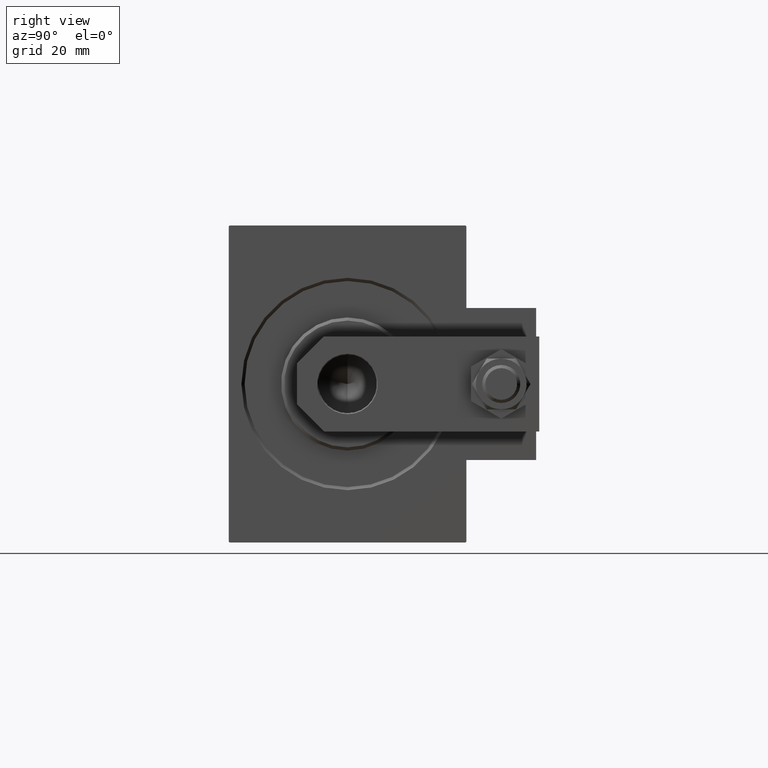
[diagram: clean part render]
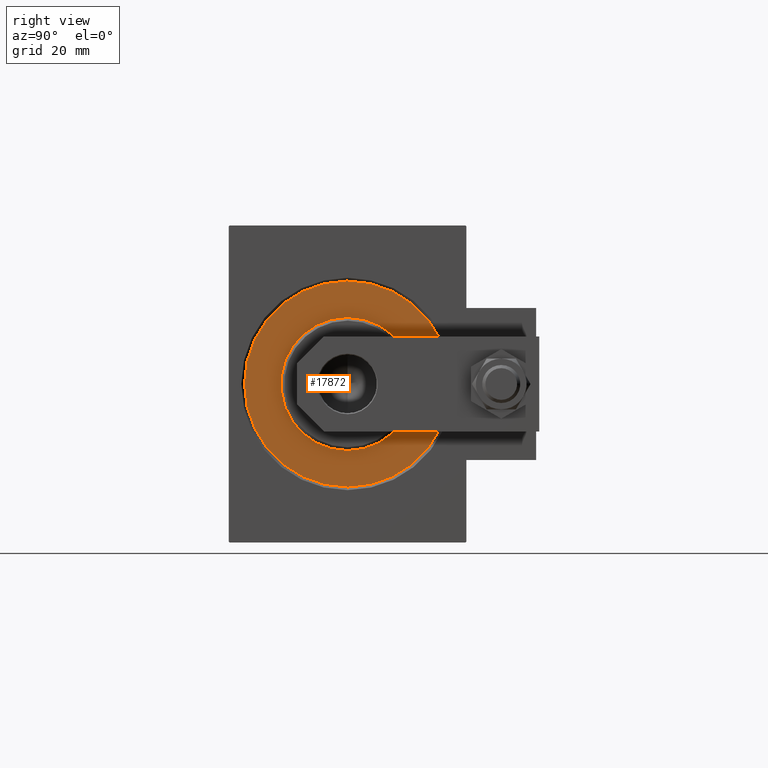
[diagram: same view with one face highlighted and labeled with its STEP entity id]
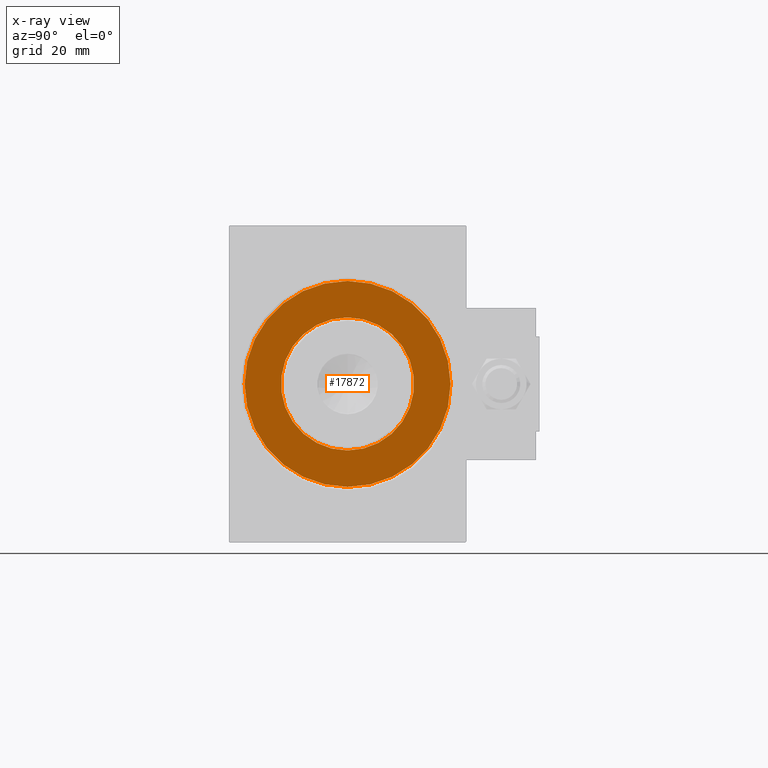
[diagram: x-ray of the same camera — body ghosted, the highlighted face saturated]
A machine part, right view. The second image highlights one B-rep face of the part: STEP entity #17872.
The next image is the same camera in x-ray: the body ghosted, the highlighted face saturated — about 0% of this face is hidden behind the body in this view.
In plain terms, the highlighted planar face has unit normal (1, 0, 0).
Its self-contained STEP definition (entity closure, byte-faithful):
#133 = DIRECTION ( 'NONE',  ( 1.000000000000000000, -0.000000000000000000, 0.000000000000000000 ) ) ;
#1685 = DIRECTION ( 'NONE',  ( 1.000000000000000000, 0.000000000000000000, 0.000000000000000000 ) ) ;
#2347 = DIRECTION ( 'NONE',  ( 1.000000000000000000, -0.000000000000000000, 0.000000000000000000 ) ) ;
#2838 = DIRECTION ( 'NONE',  ( 0.000000000000000000, 0.000000000000000000, -1.000000000000000000 ) ) ;
#3417 = VERTEX_POINT ( 'NONE', #38901 ) ;
#6214 = ORIENTED_EDGE ( 'NONE', *, *, #22732, .F. ) ;
#7280 = FACE_BOUND ( 'NONE', #15742, .T. ) ;
#10480 = DIRECTION ( 'NONE',  ( 0.000000000000000000, 0.000000000000000000, -1.000000000000000000 ) ) ;
#10627 = EDGE_LOOP ( 'NONE', ( #31338, #48391 ) ) ;
#11186 = DIRECTION ( 'NONE',  ( 0.000000000000000000, 0.000000000000000000, -1.000000000000000000 ) ) ;
#12112 = VERTEX_POINT ( 'NONE', #12365 ) ;
#12365 = CARTESIAN_POINT ( 'NONE',  ( 0.000000000000000000, 2.571758278209441661E-15, -21.00000000000000000 ) ) ;
#14024 = CARTESIAN_POINT ( 'NONE',  ( 0.000000000000000000, 0.000000000000000000, 21.00000000000000000 ) ) ;
#14167 = DIRECTION ( 'NONE',  ( 0.000000000000000000, 0.000000000000000000, -1.000000000000000000 ) ) ;
#15100 = DIRECTION ( 'NONE',  ( 1.000000000000000000, 0.000000000000000000, 0.000000000000000000 ) ) ;
#15742 = EDGE_LOOP ( 'NONE', ( #43843, #6214 ) ) ;
#17872 = ADVANCED_FACE ( 'NONE', ( #41113, #7280 ), #44791, .T. ) ;
#22732 = EDGE_CURVE ( 'NONE', #12112, #35720, #35279, .T. ) ;
#24381 = EDGE_CURVE ( 'NONE', #30222, #3417, #37016, .T. ) ;
#28852 = EDGE_CURVE ( 'NONE', #35720, #12112, #37071, .T. ) ;
#29845 = CARTESIAN_POINT ( 'NONE',  ( 0.000000000000000000, 0.000000000000000000, 0.000000000000000000 ) ) ;
#30222 = VERTEX_POINT ( 'NONE', #36098 ) ;
#30733 = CIRCLE ( 'NONE', #34649, 32.50000000000000000 ) ;
#31338 = ORIENTED_EDGE ( 'NONE', *, *, #24381, .T. ) ;
#31867 = CARTESIAN_POINT ( 'NONE',  ( 0.000000000000000000, 0.000000000000000000, 0.000000000000000000 ) ) ;
#33724 = AXIS2_PLACEMENT_3D ( 'NONE', #36977, #133, #14167 ) ;
#34354 = AXIS2_PLACEMENT_3D ( 'NONE', #29845, #40410, #10480 ) ;
#34649 = AXIS2_PLACEMENT_3D ( 'NONE', #48006, #15100, #11186 ) ;
#35279 = CIRCLE ( 'NONE', #33724, 21.00000000000000000 ) ;
#35720 = VERTEX_POINT ( 'NONE', #14024 ) ;
#36098 = CARTESIAN_POINT ( 'NONE',  ( 0.000000000000000000, 0.000000000000000000, -32.50000000000000000 ) ) ;
#36977 = CARTESIAN_POINT ( 'NONE',  ( 0.000000000000000000, 0.000000000000000000, 0.000000000000000000 ) ) ;
#37016 = CIRCLE ( 'NONE', #40167, 32.50000000000000000 ) ;
#37071 = CIRCLE ( 'NONE', #44098, 21.00000000000000000 ) ;
#37150 = EDGE_CURVE ( 'NONE', #3417, #30222, #30733, .T. ) ;
#38901 = CARTESIAN_POINT ( 'NONE',  ( 0.000000000000000000, 3.980102097228898626E-15, 32.50000000000000000 ) ) ;
#40167 = AXIS2_PLACEMENT_3D ( 'NONE', #31867, #1685, #42648 ) ;
#40410 = DIRECTION ( 'NONE',  ( 1.000000000000000000, 0.000000000000000000, 0.000000000000000000 ) ) ;
#41113 = FACE_OUTER_BOUND ( 'NONE', #10627, .T. ) ;
#42648 = DIRECTION ( 'NONE',  ( 0.000000000000000000, 0.000000000000000000, -1.000000000000000000 ) ) ;
#43557 = CARTESIAN_POINT ( 'NONE',  ( 0.000000000000000000, 0.000000000000000000, 0.000000000000000000 ) ) ;
#43843 = ORIENTED_EDGE ( 'NONE', *, *, #28852, .F. ) ;
#44098 = AXIS2_PLACEMENT_3D ( 'NONE', #43557, #2347, #2838 ) ;
#44791 = PLANE ( 'NONE',  #34354 ) ;
#48006 = CARTESIAN_POINT ( 'NONE',  ( 0.000000000000000000, 0.000000000000000000, 0.000000000000000000 ) ) ;
#48391 = ORIENTED_EDGE ( 'NONE', *, *, #37150, .T. ) ;